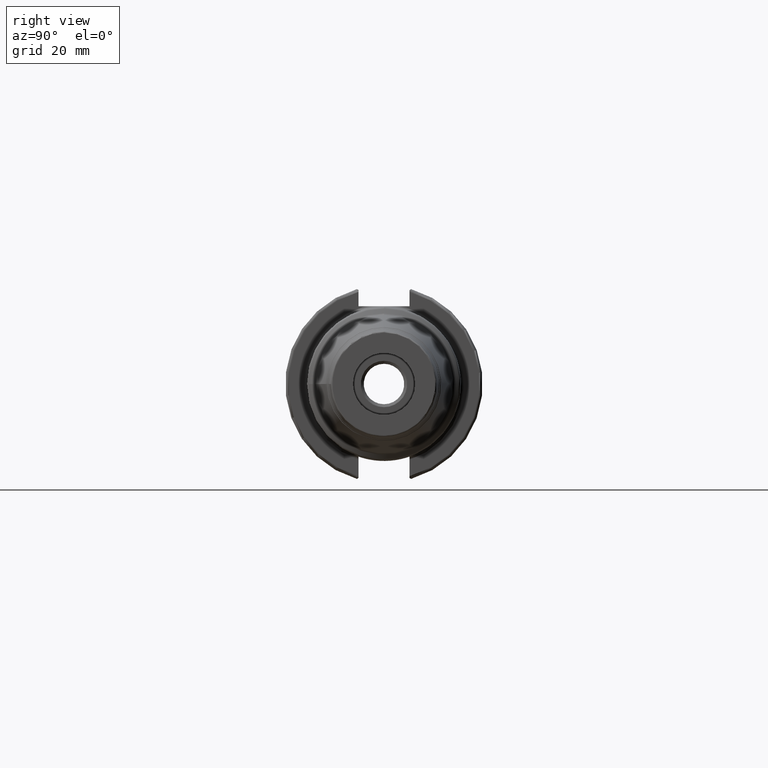
[diagram: clean part render]
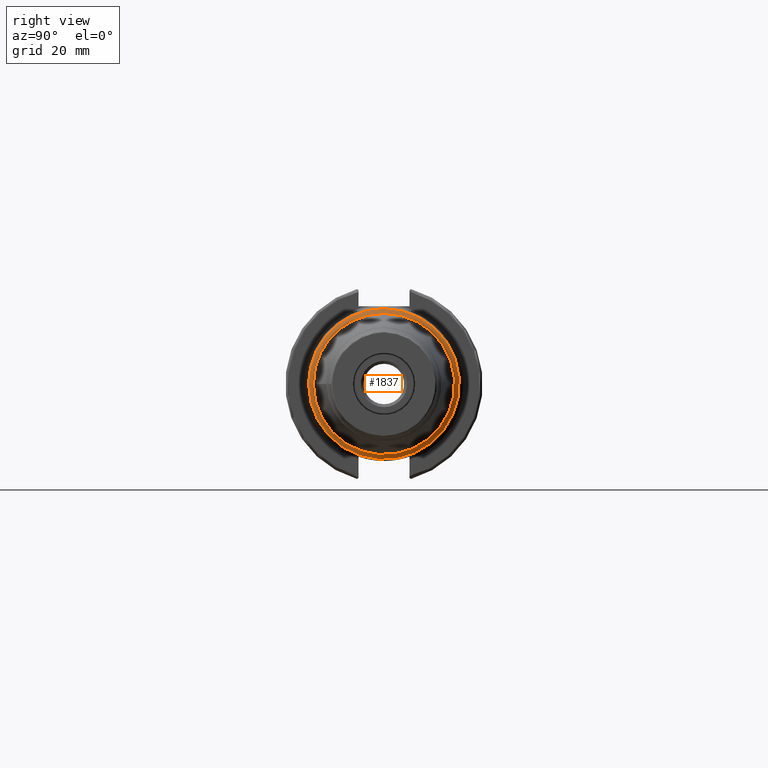
[diagram: same view with one face highlighted and labeled with its STEP entity id]
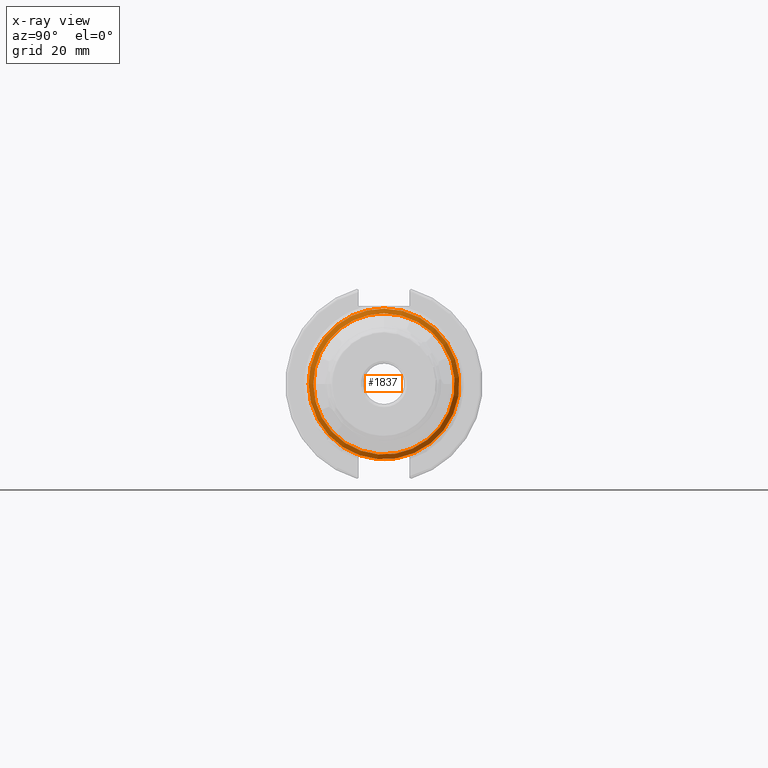
[diagram: x-ray of the same camera — body ghosted, the highlighted face saturated]
A machine part, right view. The second image highlights one B-rep face of the part: STEP entity #1837.
The next image is the same camera in x-ray: the body ghosted, the highlighted face saturated — about 0% of this face is hidden behind the body in this view.
In plain terms, the highlighted conical surface has half-angle 60 deg.
Its self-contained STEP definition (entity closure, byte-faithful):
#176=LINE('',#2916,#269);
#269=VECTOR('',#2350,23.4953889641521);
#362=CONICAL_SURFACE('',#2016,23.4953889641521,1.0471975511966);
#396=FACE_OUTER_BOUND('',#503,.T.);
#503=EDGE_LOOP('',(#1330,#1331,#1332,#1333,#1334,#1335));
#650=CIRCLE('',#2013,22.7109913573206);
#652=CIRCLE('',#2015,22.7109913573206);
#653=CIRCLE('',#2017,24.25);
#654=CIRCLE('',#2018,24.25);
#768=VERTEX_POINT('',#2909);
#769=VERTEX_POINT('',#2910);
#770=VERTEX_POINT('',#2915);
#771=VERTEX_POINT('',#2917);
#979=EDGE_CURVE('',#768,#769,#650,.T.);
#981=EDGE_CURVE('',#769,#768,#652,.T.);
#982=EDGE_CURVE('',#768,#770,#176,.T.);
#983=EDGE_CURVE('',#771,#770,#653,.T.);
#984=EDGE_CURVE('',#770,#771,#654,.T.);
#1330=ORIENTED_EDGE('',*,*,#979,.F.);
#1331=ORIENTED_EDGE('',*,*,#982,.T.);
#1332=ORIENTED_EDGE('',*,*,#983,.F.);
#1333=ORIENTED_EDGE('',*,*,#984,.F.);
#1334=ORIENTED_EDGE('',*,*,#982,.F.);
#1335=ORIENTED_EDGE('',*,*,#981,.F.);
#1837=ADVANCED_FACE('',(#396),#362,.T.);
#2013=AXIS2_PLACEMENT_3D('',#2911,#2342,#2343);
#2015=AXIS2_PLACEMENT_3D('',#2913,#2346,#2347);
#2016=AXIS2_PLACEMENT_3D('',#2914,#2348,#2349);
#2017=AXIS2_PLACEMENT_3D('',#2918,#2351,#2352);
#2018=AXIS2_PLACEMENT_3D('',#2919,#2353,#2354);
#2342=DIRECTION('center_axis',(1.,0.,0.));
#2343=DIRECTION('ref_axis',(0.,-1.,3.06161699786838E-17));
#2346=DIRECTION('center_axis',(1.,0.,0.));
#2347=DIRECTION('ref_axis',(0.,-1.,3.06161699786838E-17));
#2348=DIRECTION('center_axis',(-1.,0.,0.));
#2349=DIRECTION('ref_axis',(0.,1.,0.));
#2350=DIRECTION('',(-0.500000000000001,-0.866025403784438,-1.06057523872491E-16));
#2351=DIRECTION('center_axis',(-1.,0.,0.));
#2352=DIRECTION('ref_axis',(0.,-1.,3.06161699786838E-17));
#2353=DIRECTION('center_axis',(-1.,0.,0.));
#2354=DIRECTION('ref_axis',(0.,-1.,3.06161699786838E-17));
#2909=CARTESIAN_POINT('',(49.7285221501808,-22.7109913573206,-2.78129428712058E-15));
#2910=CARTESIAN_POINT('',(49.7285221501808,-2.78129428712058E-15,22.7109913573206));
#2911=CARTESIAN_POINT('Origin',(49.7285221501808,0.,-3.47661785890073E-15));
#2913=CARTESIAN_POINT('Origin',(49.7285221501808,0.,-3.47661785890073E-15));
#2914=CARTESIAN_POINT('Origin',(49.2756499807249,0.,0.));
#2915=CARTESIAN_POINT('',(48.8399750960446,-24.25,-2.96976848793233E-15));
#2916=CARTESIAN_POINT('',(49.2756499807249,-23.4953889641521,-2.87735528896709E-15));
#2917=CARTESIAN_POINT('',(48.8399750960446,-2.96976848793233E-15,24.25));
#2918=CARTESIAN_POINT('Origin',(48.8399750960446,0.,-3.71221060991541E-15));
#2919=CARTESIAN_POINT('Origin',(48.8399750960446,0.,-3.71221060991541E-15));